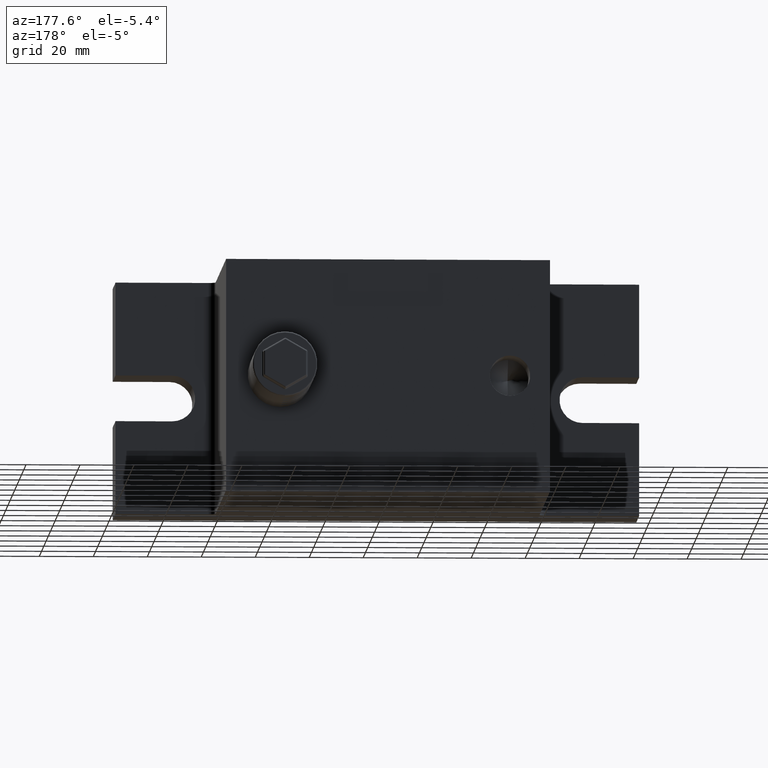
[diagram: clean part render]
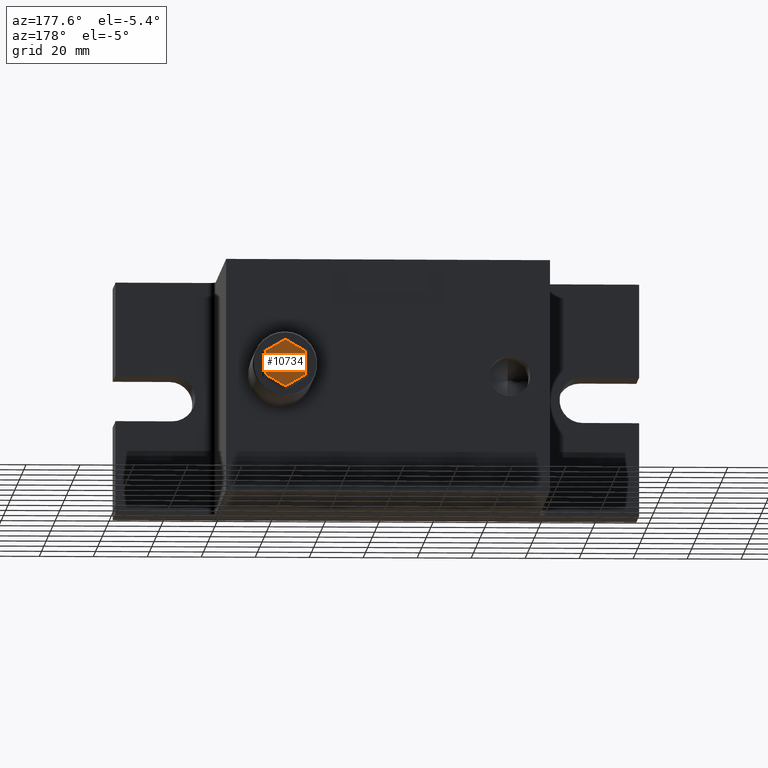
[diagram: same view with one face highlighted and labeled with its STEP entity id]
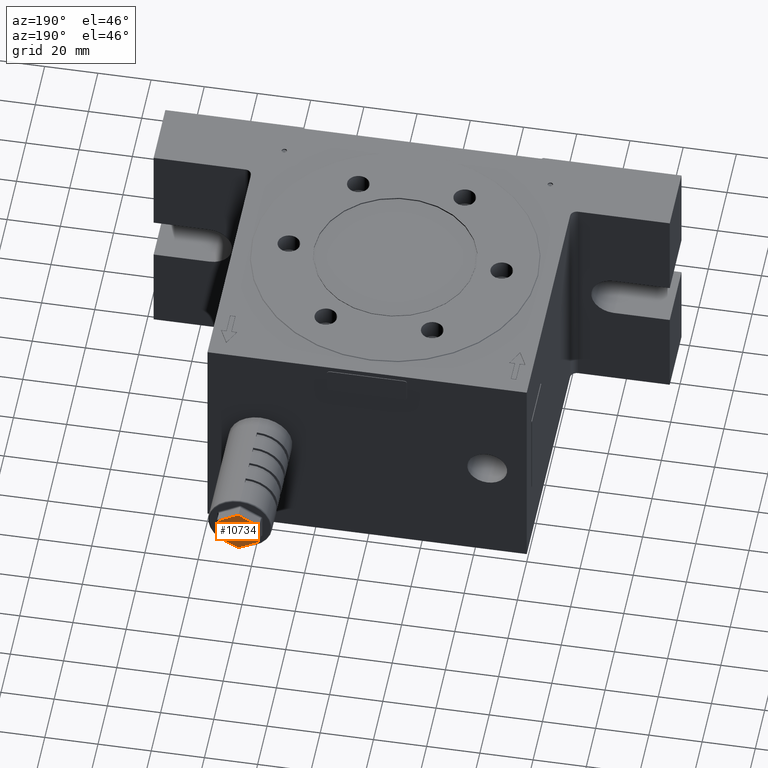
[diagram: same view with one face highlighted and labeled with its STEP entity id]
A machine part, auxiliary view. The second image highlights one B-rep face of the part: STEP entity #10734.
A second angle (auxiliary view) of the same face is appended — the face is thin or edge-on in the first view.
In plain terms, the highlighted planar face has unit normal (0, 1, 0).
Its self-contained STEP definition (entity closure, byte-faithful):
#16 = FACE_OUTER_BOUND ( 'NONE', #20591, .T. ) ;
#118 = CARTESIAN_POINT ( 'NONE',  ( 47.50000000000000000, 108.0000000000000000, -4.618802153517009400 ) ) ;
#417 = VECTOR ( 'NONE', #15020, 1000.000000000000000 ) ;
#654 = EDGE_CURVE ( 'NONE', #2945, #10388, #12847, .T. ) ;
#833 = PLANE ( 'NONE',  #1434 ) ;
#1087 = VECTOR ( 'NONE', #16888, 1000.000000000000000 ) ;
#1434 = AXIS2_PLACEMENT_3D ( 'NONE', #4105, #16051, #21240 ) ;
#2923 = CARTESIAN_POINT ( 'NONE',  ( 32.50000000000000000, 108.0000000000000000, 4.618802153517000500 ) ) ;
#2945 = VERTEX_POINT ( 'NONE', #10727 ) ;
#4105 = CARTESIAN_POINT ( 'NONE',  ( 40.00000000000000000, 108.0000000000000000, -9.237604307034018800 ) ) ;
#4195 = ORIENTED_EDGE ( 'NONE', *, *, #14657, .T. ) ;
#4940 = CARTESIAN_POINT ( 'NONE',  ( 39.75000000000000000, 108.0000000000000000, -8.804591605141800100 ) ) ;
#4964 = LINE ( 'NONE', #2923, #417 ) ;
#5282 = ORIENTED_EDGE ( 'NONE', *, *, #654, .T. ) ;
#5283 = VERTEX_POINT ( 'NONE', #20497 ) ;
#5337 = ORIENTED_EDGE ( 'NONE', *, *, #12045, .T. ) ;
#5790 = CARTESIAN_POINT ( 'NONE',  ( 47.50000000000000000, 108.0000000000000000, -4.330127018922199900 ) ) ;
#6051 = VECTOR ( 'NONE', #8235, 1000.000000000000000 ) ;
#6057 = ORIENTED_EDGE ( 'NONE', *, *, #15564, .T. ) ;
#7150 = VECTOR ( 'NONE', #10866, 1000.000000000000000 ) ;
#7316 = CARTESIAN_POINT ( 'NONE',  ( 32.50000000000000000, 108.0000000000000000, 4.330127018922195400 ) ) ;
#7447 = CARTESIAN_POINT ( 'NONE',  ( 40.00000000000000000, 108.0000000000000000, -8.660254037844390900 ) ) ;
#8235 = DIRECTION ( 'NONE',  ( 0.8660254037844387100, 0.0000000000000000000, -0.4999999999999998900 ) ) ;
#8617 = CARTESIAN_POINT ( 'NONE',  ( 32.50000000000000000, 108.0000000000000000, -4.330127018922191000 ) ) ;
#8647 = VERTEX_POINT ( 'NONE', #8617 ) ;
#8701 = LINE ( 'NONE', #15122, #6051 ) ;
#10388 = VERTEX_POINT ( 'NONE', #5790 ) ;
#10727 = CARTESIAN_POINT ( 'NONE',  ( 47.50000000000000000, 108.0000000000000000, 4.330127018922191000 ) ) ;
#10734 = ADVANCED_FACE ( 'NONE', ( #16 ), #833, .T. ) ;
#10866 = DIRECTION ( 'NONE',  ( -0.8660254037844387100, 0.0000000000000000000, 0.4999999999999998900 ) ) ;
#11586 = LINE ( 'NONE', #21814, #14817 ) ;
#12045 = EDGE_CURVE ( 'NONE', #10388, #16709, #16299, .T. ) ;
#12847 = LINE ( 'NONE', #118, #16864 ) ;
#13394 = DIRECTION ( 'NONE',  ( 0.8660254037844387100, 0.0000000000000000000, 0.4999999999999998900 ) ) ;
#14620 = ORIENTED_EDGE ( 'NONE', *, *, #18879, .T. ) ;
#14657 = EDGE_CURVE ( 'NONE', #5283, #2945, #8701, .T. ) ;
#14817 = VECTOR ( 'NONE', #13394, 1000.000000000000000 ) ;
#14945 = LINE ( 'NONE', #19280, #7150 ) ;
#15020 = DIRECTION ( 'NONE',  ( 0.0000000000000000000, 0.0000000000000000000, 1.000000000000000000 ) ) ;
#15122 = CARTESIAN_POINT ( 'NONE',  ( 47.75000000000000000, 108.0000000000000000, 4.185789451624785300 ) ) ;
#15564 = EDGE_CURVE ( 'NONE', #21820, #5283, #11586, .T. ) ;
#16051 = DIRECTION ( 'NONE',  ( 0.0000000000000000000, 1.000000000000000000, 0.0000000000000000000 ) ) ;
#16299 = LINE ( 'NONE', #4940, #1087 ) ;
#16709 = VERTEX_POINT ( 'NONE', #7447 ) ;
#16864 = VECTOR ( 'NONE', #18006, 1000.000000000000000 ) ;
#16888 = DIRECTION ( 'NONE',  ( -0.8660254037844387100, 0.0000000000000000000, -0.4999999999999998900 ) ) ;
#18006 = DIRECTION ( 'NONE',  ( 0.0000000000000000000, 0.0000000000000000000, -1.000000000000000000 ) ) ;
#18879 = EDGE_CURVE ( 'NONE', #16709, #8647, #14945, .T. ) ;
#19280 = CARTESIAN_POINT ( 'NONE',  ( 32.25000000000000000, 108.0000000000000000, -4.185789451624785300 ) ) ;
#20372 = ORIENTED_EDGE ( 'NONE', *, *, #20611, .T. ) ;
#20497 = CARTESIAN_POINT ( 'NONE',  ( 40.00000000000000000, 108.0000000000000000, 8.660254037844390900 ) ) ;
#20591 = EDGE_LOOP ( 'NONE', ( #4195, #5282, #5337, #14620, #20372, #6057 ) ) ;
#20611 = EDGE_CURVE ( 'NONE', #8647, #21820, #4964, .T. ) ;
#21240 = DIRECTION ( 'NONE',  ( 0.0000000000000000000, 0.0000000000000000000, -1.000000000000000000 ) ) ;
#21814 = CARTESIAN_POINT ( 'NONE',  ( 40.25000000000000000, 108.0000000000000000, 8.804591605141789400 ) ) ;
#21820 = VERTEX_POINT ( 'NONE', #7316 ) ;